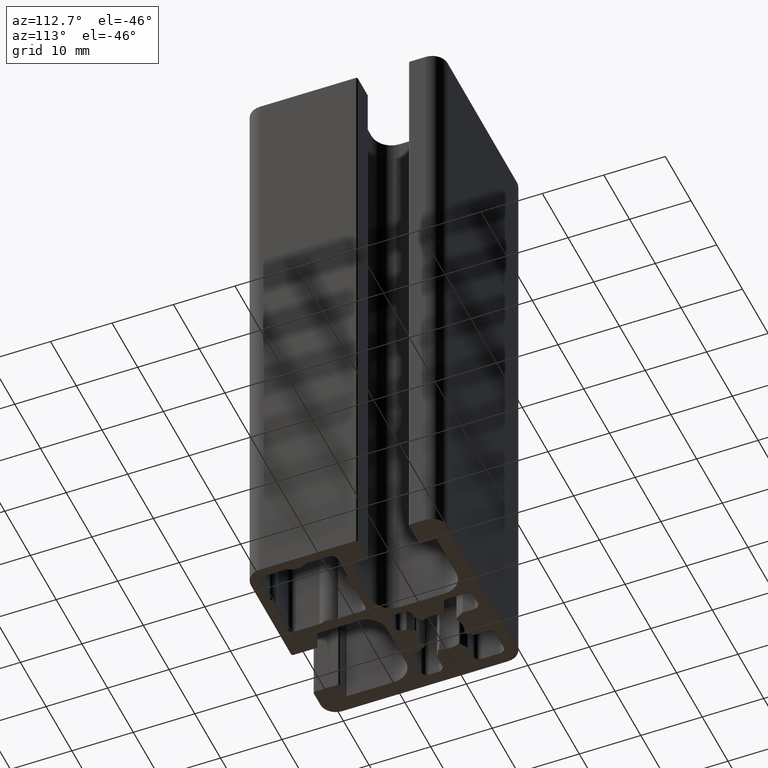
[diagram: clean part render]
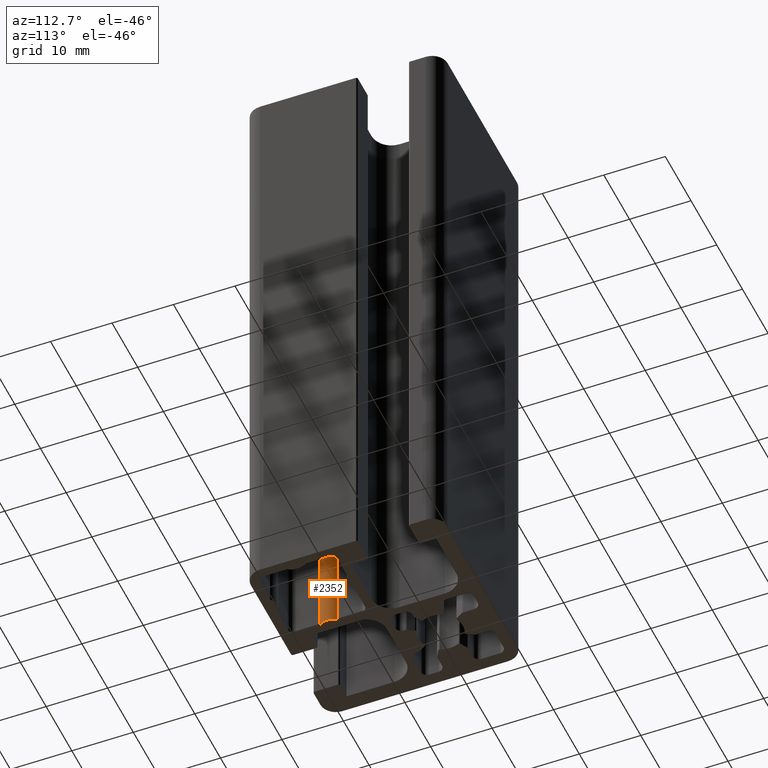
[diagram: same view with one face highlighted and labeled with its STEP entity id]
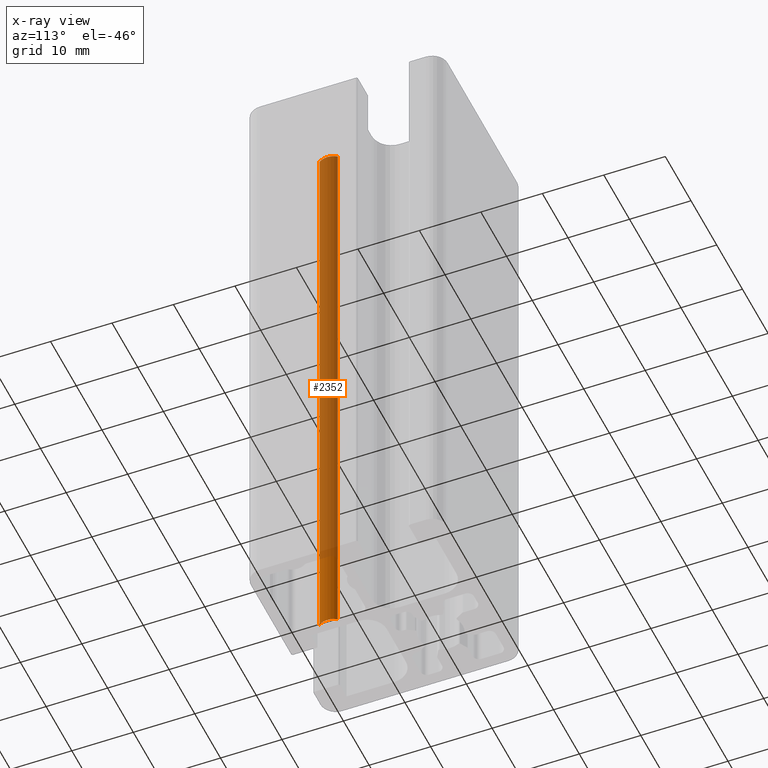
[diagram: x-ray of the same camera — body ghosted, the highlighted face saturated]
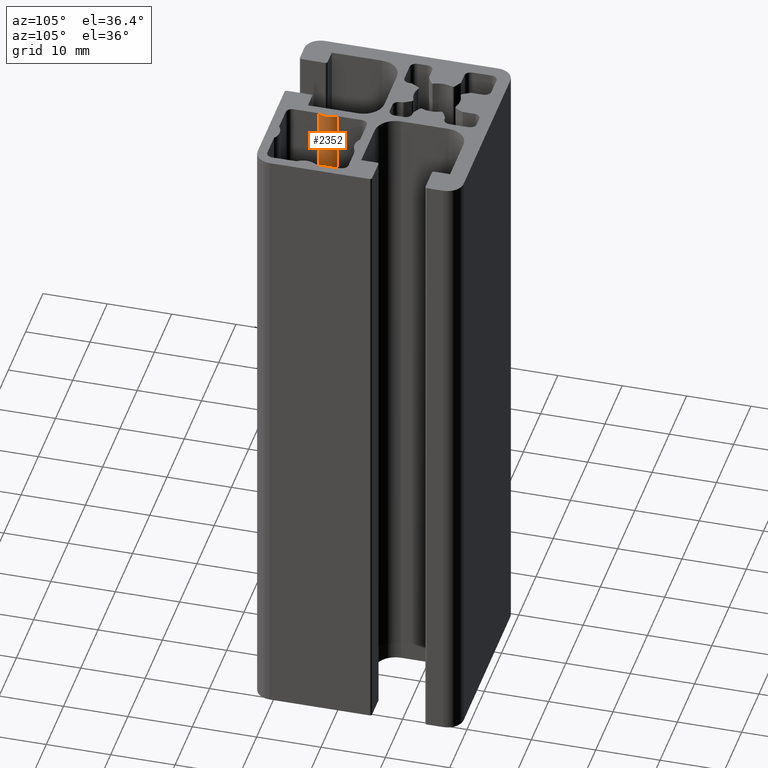
[diagram: same view with one face highlighted and labeled with its STEP entity id]
A machine part, auxiliary view. The second image highlights one B-rep face of the part: STEP entity #2352.
The next image is the same camera in x-ray: the body ghosted, the highlighted face saturated — about 86% of this face is hidden behind the body in this view.
A second angle (auxiliary view) of the same face is appended — the face is thin or edge-on in the first view.
In plain terms, the highlighted cylindrical surface (edge-blend (fillet) strip) has radius 2.5 mm, axis along (0, 0, 1).
Its self-contained STEP definition (entity closure, byte-faithful):
#87=CIRCLE('',#2545,2.5);
#88=CIRCLE('',#2546,2.5);
#189=CYLINDRICAL_SURFACE('',#2544,2.5);
#282=FACE_OUTER_BOUND('',#404,.T.);
#404=EDGE_LOOP('',(#1755,#1756,#1757,#1758));
#580=LINE('',#3773,#804);
#581=LINE('',#3779,#805);
#804=VECTOR('',#3038,100.);
#805=VECTOR('',#3045,100.);
#1037=VERTEX_POINT('',#3770);
#1038=VERTEX_POINT('',#3772);
#1039=VERTEX_POINT('',#3776);
#1040=VERTEX_POINT('',#3778);
#1335=EDGE_CURVE('',#1038,#1037,#580,.T.);
#1337=EDGE_CURVE('',#1039,#1037,#87,.T.);
#1338=EDGE_CURVE('',#1040,#1039,#581,.T.);
#1339=EDGE_CURVE('',#1038,#1040,#88,.T.);
#1755=ORIENTED_EDGE('',*,*,#1337,.F.);
#1756=ORIENTED_EDGE('',*,*,#1338,.F.);
#1757=ORIENTED_EDGE('',*,*,#1339,.F.);
#1758=ORIENTED_EDGE('',*,*,#1335,.T.);
#2352=ADVANCED_FACE('',(#282),#189,.T.);
#2544=AXIS2_PLACEMENT_3D('',#3775,#3041,#3042);
#2545=AXIS2_PLACEMENT_3D('',#3777,#3043,#3044);
#2546=AXIS2_PLACEMENT_3D('',#3780,#3046,#3047);
#3038=DIRECTION('',(0.,0.,1.));
#3041=DIRECTION('center_axis',(0.,0.,1.));
#3042=DIRECTION('ref_axis',(-0.807691820825252,0.58960488682845,0.));
#3043=DIRECTION('center_axis',(0.,0.,1.));
#3044=DIRECTION('ref_axis',(-0.807691820825252,0.58960488682845,0.));
#3045=DIRECTION('',(0.,0.,1.));
#3046=DIRECTION('center_axis',(0.,0.,-1.));
#3047=DIRECTION('ref_axis',(-0.807691820825252,0.58960488682845,0.));
#3770=CARTESIAN_POINT('',(8.41922025013679,-13.2259895335513,100.));
#3772=CARTESIAN_POINT('',(8.41922025013679,-13.2259895335513,0.));
#3773=CARTESIAN_POINT('',(8.41922025013679,-13.2259895335513,0.));
#3775=CARTESIAN_POINT('Origin',(6.39999069807364,-14.7000017506224,0.));
#3776=CARTESIAN_POINT('',(8.41922025013677,-16.1740139676935,100.));
#3777=CARTESIAN_POINT('Origin',(6.39999069807364,-14.7000017506224,100.));
#3778=CARTESIAN_POINT('',(8.41922025013677,-16.1740139676935,0.));
#3779=CARTESIAN_POINT('',(8.41922025013677,-16.1740139676935,0.));
#3780=CARTESIAN_POINT('Origin',(6.39999069807364,-14.7000017506224,0.));